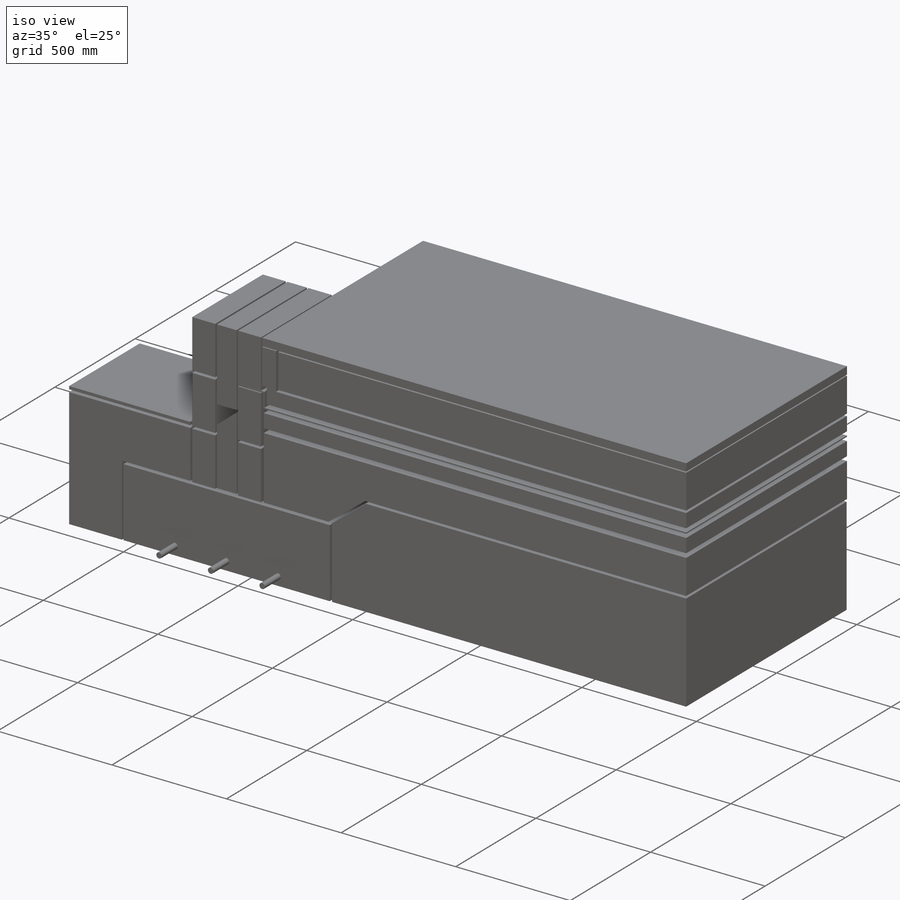
[diagram: iso view]
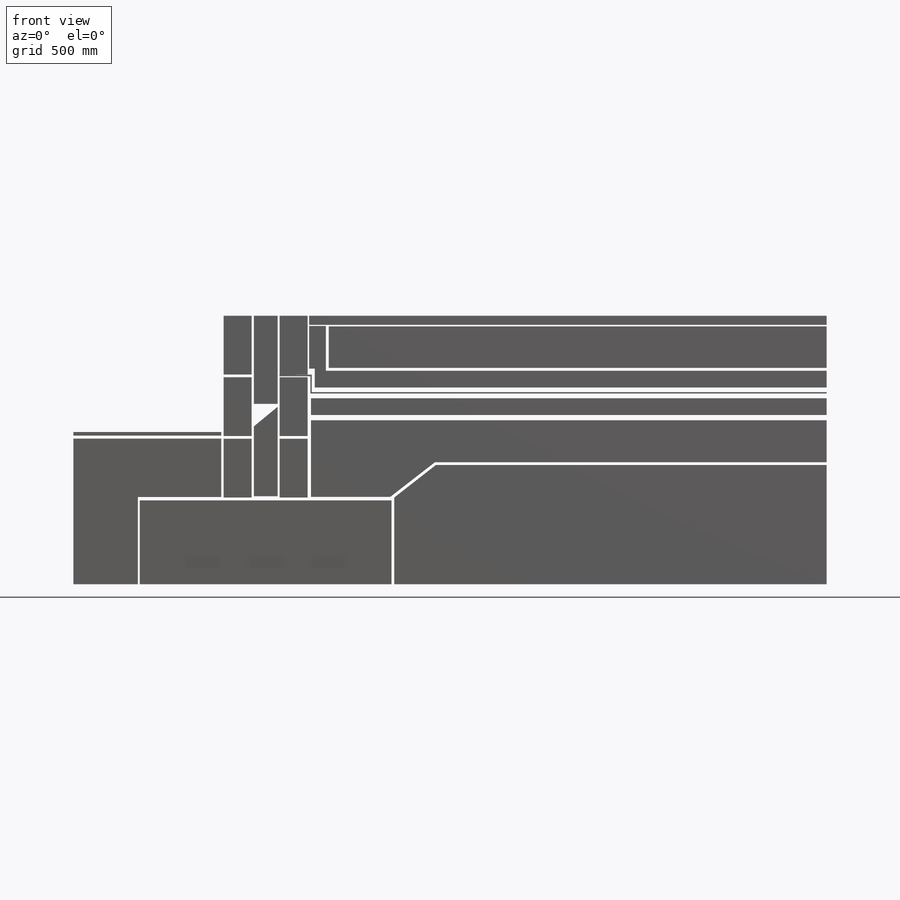
[diagram: front view]
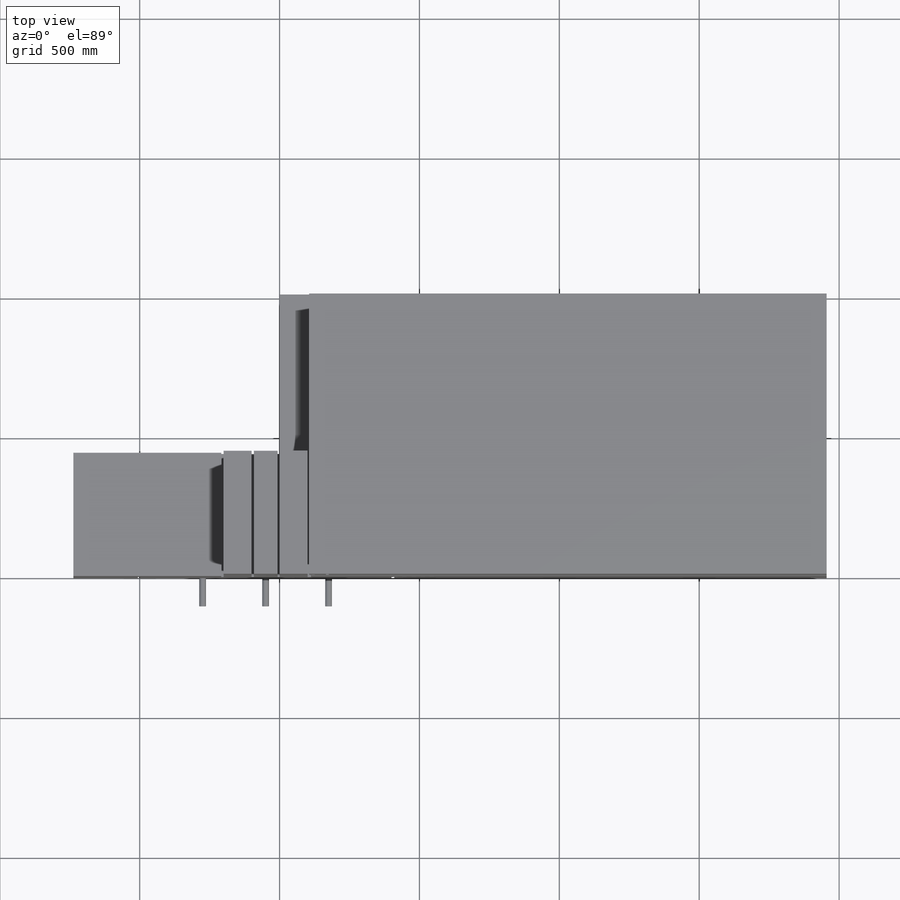
[diagram: top view]
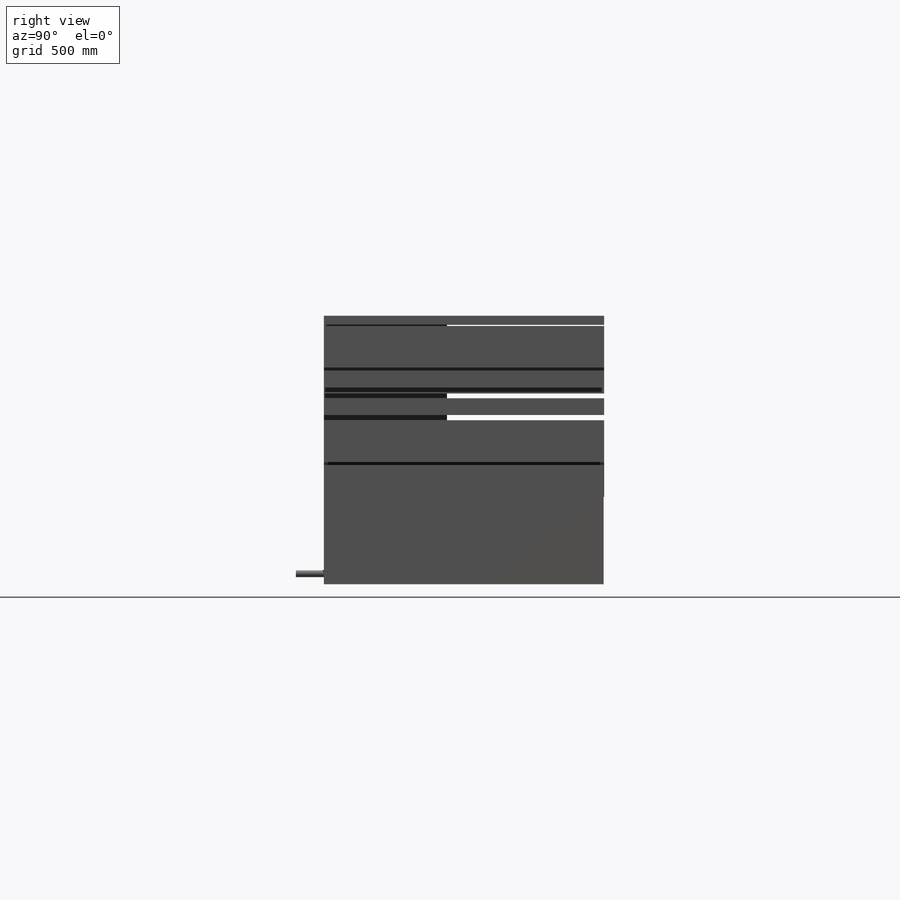
[diagram: right view]
SOLIDWORKS PART (.sldprt)
format: sldprt  version: not decoded by parser v0  size: 530,432 bytes
history: native  units: mm
features: sketch x17, extrude x17, plane x4, material x1 (+15 scaffold rows collapsed)
feature tree (54):
  scaffold x15  (default folders/planes/origin — collapsed)
  material  "Material <not specified>"
  sketch  "Sketch1"  dims[D1=900.0mm D2=300.0mm]
  extrude  "Extrude1"  Depth=440mm
  plane  "Plane1"  Offset=10mm
  sketch  "Sketch2"  dims[D1=440.0mm D2=100.0mm D3=300.0mm]
  extrude  "Extrude2"  Depth=210mm
  sketch  "Sketch3"  dims[D1=440.0mm D2=100.0mm D3=100.0mm]
  extrude  "Extrude3"  Depth=210mm
  plane  "Plane2"  Offset=10mm
  sketch  "Sketch4"  dims[D1=440.0mm D2=100.0mm D3=300.0mm D4=440.0mm D5=100.0mm D6=300.0mm]
  extrude  "Extrude4"  Depth=210mm
  plane  "Plane3"  Offset=10mm
  sketch  "Sketch5"  dims[D1=100.0mm D2=440.0mm D3=300.0mm D4=440.0mm D5=100.0mm D6=300.0mm]
  extrude  "Extrude5"  Depth=210mm
  plane  "Plane4"  Offset=0mm
  sketch  "Sketch8"  dims[D1=150.0mm D2=1400.0mm D3=160.0mm D4=~283.144683mm D5=~274.057677mm D6=~1843.144683mm]
  extrude  "Extrude7"  Depth=1002mm
  sketch  "Sketch9"  dims[D1=320.0mm D2=250.0mm D3=85.0mm]
  extrude  "Extrude8"  Depth=440mm
  sketch  "Sketch10"  dims[D1=85.0mm D2=~315.059769mm]
  extrude  "Extrude9"  Depth=440mm
  sketch  "Sketch12"  dims[c1.D1=10.0mm c1.D2=~196.492121mm c2.D2=0.2deg c2.D3=10.0mm c2.D4=~1396.865252mm]
  extrude  "Extrude11"  Depth=1000mm
  sketch  "Sketch14"  dims[D1=60.0mm D2=60.0mm]
  extrude  "Extrude12"  [1 undecoded]
  sketch  "Sketch15"  dims[c1.D1=~130.766332mm c2.D1=~0.347394deg c2.D2=5.0mm c2.D3=10.0mm c2.D4=5.0mm]
  extrude  "Extrude13"  [1 undecoded]
  sketch  "Sketch16"  dims[D1=60.0mm D2=220.0mm D3=60.0mm]
  extrude  "Extrude14"  [1 undecoded]
  sketch  "Sketch17"  dims[D1=10.0mm D2=10.0mm D3=~1779.965827mm]
  extrude  "Extrude15"  [1 undecoded]
  sketch  "Sketch18"  dims[c1.D2=~16.141698mm c1.D4=24.0mm c1.D1=225.0mm c2.D2=225.0mm c2.D3=225.0mm]
  extrude  "Extrude16"  Depth=100mm
  sketch  "Sketch19"  dims[D1=5.0mm]
  extrude  "Extrude17"  [1 undecoded]
  sketch  "Sketch20"
  extrude  "Extrude18"  [1 undecoded]
  sketch  "Sketch21"
  extrude  "Extrude19"  [1 undecoded]
decode coverage: 25 of 34 modeling features carry decoded parameters
note: ~ marks probable driven/reference dimensions
note: 7 parameter values undecoded
summary: no parameter record found for 7 features
note: suppression state not decoded; provenance and decode notes live in map.json
